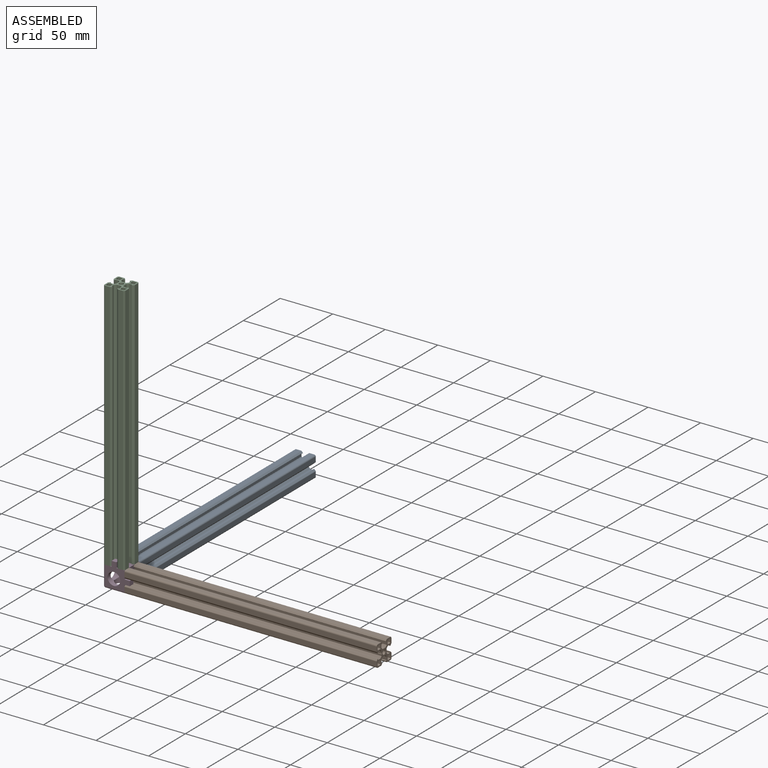
[diagram: assembled view]
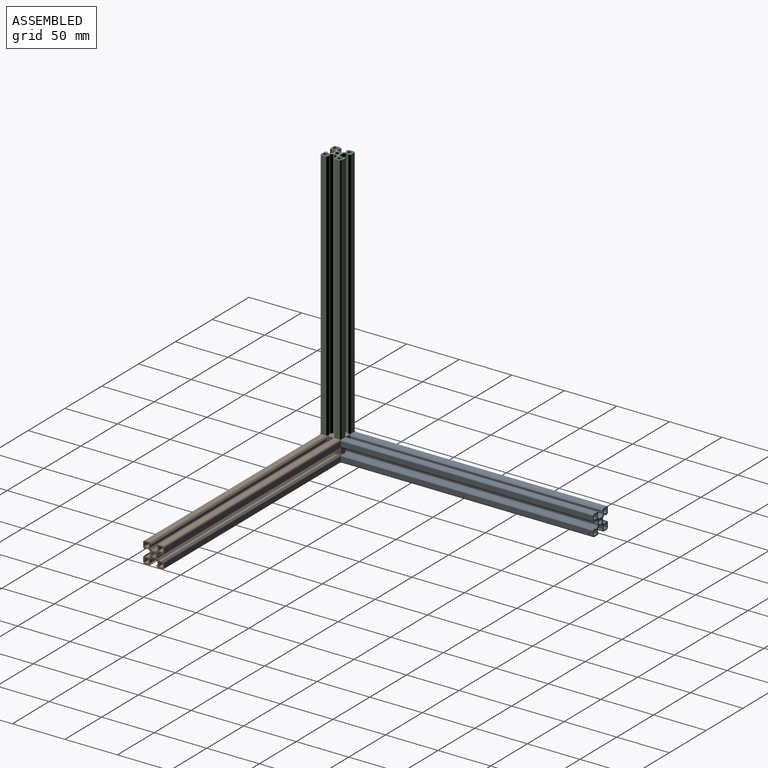
[diagram: assembled view, second angle]
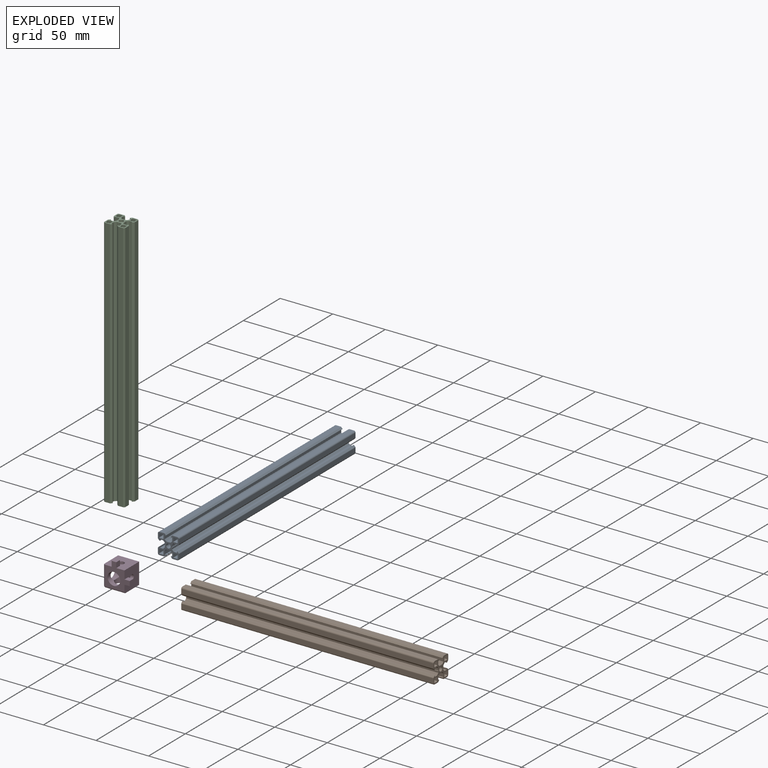
[diagram: exploded view]
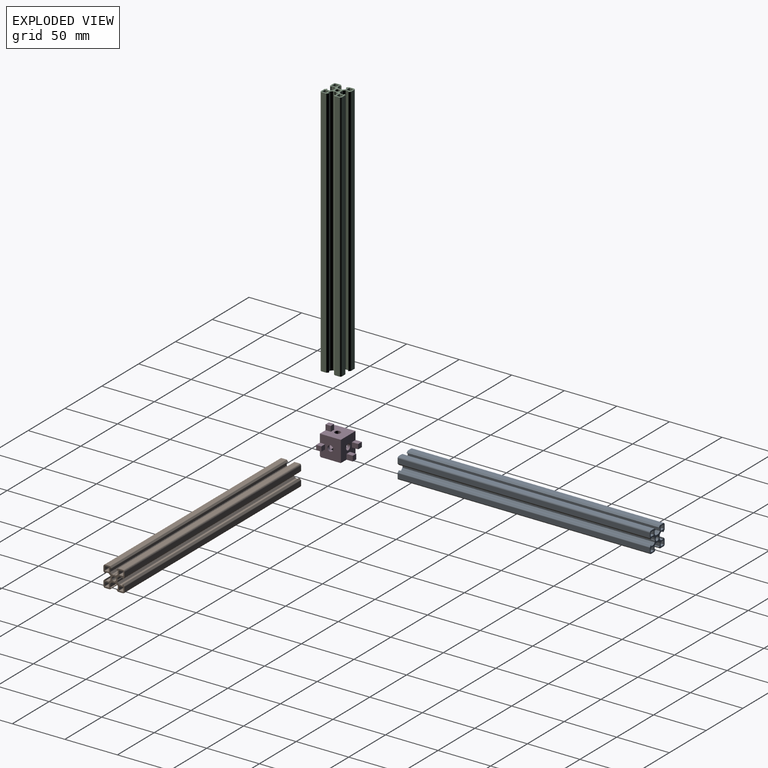
[diagram: exploded view, second angle]
ASSEMBLY  parts=4 mates=3
PART A: 111 faces, bbox 20x20x240 mm
  f0: plane 240x4.33mm, normal (-1,0,0), area 1039.5mm2, adj f1,f103,f109,f110
  f1: cylinder r=1.5mm len=240mm, axis (0,0,1), area 523.6mm2, adj f0,f2,f109,f110
  f2: plane 240x4.56mm, normal (0,-1,0), area 1093.4mm2, adj f1,f3,f109,f110
  f3: cylinder r=0.8mm len=240mm, axis (0,0,1), area 150.8mm2, adj f2,f4,f109,f110
  f4: plane 240x1.1mm, normal (0.71,-0.71,0), area 374.7mm2, adj f3,f5,f109,f110
  f5: cylinder r=0.25mm len=240mm, axis (0,0,1), area 141.4mm2, adj f4,f6,f109,f110
  f6: plane 240x1.05mm, normal (0,1,0), area 252mm2, adj f5,f7,f109,f110
  f7: plane 240x3.2mm, normal (1,0,0), area 768mm2, adj f6,f8,f109,f110
  f8: plane 240x1.6mm, normal (0.71,-0.71,0), area 542.1mm2, adj f7,f9,f109,f110
  f9: plane 240x1.71mm, normal (0,-1,0), area 409.3mm2, adj f8,f10,f109,f110
  f10: plane 240x0.3mm, normal (0.65,-0.76,0), area 95.3mm2, adj f9,f11,f109,f110
  f11: plane 240x0.3mm, normal (-0.65,-0.76,0), area 95.3mm2, adj f10,f12,f109,f110
  f12: plane 240x1.71mm, normal (0,-1,0), area 409.3mm2, adj f11,f13,f109,f110
  f13: plane 240x1.6mm, normal (-0.71,-0.71,0), area 542.1mm2, adj f12,f14,f109,f110
  f14: plane 240x3.2mm, normal (-1,0,0), area 768mm2, adj f13,f15,f109,f110
  f15: plane 240x1.05mm, normal (0,1,0), area 252mm2, adj f14,f16,f109,f110
  f16: cylinder r=0.25mm len=240mm, axis (0,0,1), area 141.4mm2, adj f15,f17,f109,f110
  f17: plane 240x1.1mm, normal (-0.71,-0.71,0), area 374.7mm2, adj f16,f18,f109,f110
  f18: cylinder r=0.8mm len=240mm, axis (0,0,1), area 150.8mm2, adj f17,f19,f109,f110
  f19: plane 240x4.56mm, normal (0,-1,0), area 1093.4mm2, adj f18,f20,f109,f110
  f20: cylinder r=1.5mm len=240mm, axis (0,0,1), area 523.6mm2, adj f19,f21,f109,f110
  f21: plane 240x4.33mm, normal (1,0,0), area 1039.5mm2, adj f20,f22,f109,f110
  f22: cylinder r=0.79mm len=240mm, axis (0,0,1), area 148.9mm2, adj f21,f23,f109,f110
  f23: plane 240x1.28mm, normal (0.71,0.71,0), area 435.3mm2, adj f22,f24,f109,f110
  f24: cylinder r=0.2mm len=240mm, axis (0,0,1), area 110.6mm2, adj f23,f25,f109,f110
  f25: plane 240x1.06mm, normal (-1,0,0), area 254.4mm2, adj f24,f26,f109,f110
  f26: plane 240x3.12mm, normal (0,1,0), area 748mm2, adj f25,f27,f109,f110
  f27: plane 240x1.63mm, normal (0.71,0.71,0), area 553.6mm2, adj f26,f28,f109,f110
  f28: plane 240x1.59mm, normal (1,0,0), area 380.4mm2, adj f27,f29,f109,f110
  f29: plane 240x0.38mm, normal (0.71,0.71,0), area 129.3mm2, adj f28,f30,f109,f110
  f30: plane 240x0.38mm, normal (0.71,-0.71,0), area 129.3mm2, adj f29,f31,f109,f110
  f31: plane 240x1.59mm, normal (1,0,0), area 380.4mm2, adj f30,f32,f109,f110
  f32: plane 240x1.63mm, normal (0.71,-0.71,0), area 553.6mm2, adj f31,f33,f109,f110
  f33: plane 240x3.12mm, normal (0,-1,0), area 748mm2, adj f32,f34,f109,f110
  f34: plane 240x1.06mm, normal (-1,0,0), area 254.4mm2, adj f33,f35,f109,f110
  f35: cylinder r=0.2mm len=240mm, axis (0,0,1), area 110.6mm2, adj f34,f36,f109,f110
  f36: plane 240x1.28mm, normal (0.71,-0.71,0), area 435.3mm2, adj f35,f37,f109,f110
  f37: cylinder r=0.79mm len=240mm, axis (0,0,1), area 148.9mm2, adj f36,f38,f109,f110
  f38: plane 240x4.33mm, normal (1,0,0), area 1039.5mm2, adj f37,f39,f109,f110
  f39: cylinder r=1.5mm len=240mm, axis (0,0,1), area 523.6mm2, adj f38,f40,f109,f110
  f40: plane 240x4.56mm, normal (0,1,0), area 1093.4mm2, adj f39,f41,f109,f110
  f41: cylinder r=0.8mm len=240mm, axis (0,0,1), area 150.8mm2, adj f40,f42,f109,f110
  f42: plane 240x1.1mm, normal (-0.71,0.71,0), area 374.7mm2, adj f41,f43,f109,f110
  f43: cylinder r=0.25mm len=240mm, axis (0,0,1), area 141.4mm2, adj f42,f44,f109,f110
  f44: plane 240x1.05mm, normal (0,-1,0), area 252mm2, adj f43,f45,f109,f110
  f45: plane 240x3.2mm, normal (-1,0,0), area 768mm2, adj f44,f46,f109,f110
  f46: plane 240x1.6mm, normal (-0.71,0.71,0), area 542.1mm2, adj f45,f47,f109,f110
  f47: plane 240x1.71mm, normal (0,1,0), area 409.3mm2, adj f46,f48,f109,f110
  f48: plane 240x0.3mm, normal (-0.65,0.76,0), area 95.3mm2, adj f47,f49,f109,f110
  f49: plane 240x0.3mm, normal (0.65,0.76,0), area 95.3mm2, adj f48,f50,f109,f110
  f50: plane 240x1.71mm, normal (0,1,0), area 409.3mm2, adj f49,f51,f109,f110
  f51: plane 240x1.6mm, normal (0.71,0.71,0), area 542.1mm2, adj f50,f52,f109,f110
  f52: plane 240x3.2mm, normal (1,0,0), area 768mm2, adj f51,f53,f109,f110
  f53: plane 240x1.05mm, normal (0,-1,0), area 252mm2, adj f52,f54,f109,f110
  f54: cylinder r=0.25mm len=240mm, axis (0,0,1), area 141.4mm2, adj f53,f55,f109,f110
  f55: plane 240x1.1mm, normal (0.71,0.71,0), area 374.7mm2, adj f54,f56,f109,f110
  f56: cylinder r=0.8mm len=240mm, axis (0,0,1), area 150.8mm2, adj f55,f57,f109,f110
  f57: plane 240x4.56mm, normal (0,1,0), area 1093.4mm2, adj f56,f58,f109,f110
  f58: cylinder r=1.5mm len=240mm, axis (0,0,1), area 523.6mm2, adj f57,f59,f109,f110
  f59: plane 240x4.33mm, normal (-1,0,0), area 1039.5mm2, adj f58,f60,f109,f110
  f60: cylinder r=0.79mm len=240mm, axis (0,0,1), area 148.9mm2, adj f59,f61,f109,f110
  f61: plane 240x1.28mm, normal (-0.71,-0.71,0), area 435.3mm2, adj f60,f62,f109,f110
  f62: cylinder r=0.2mm len=240mm, axis (0,0,1), area 110.6mm2, adj f61,f63,f109,f110
  f63: plane 240x1.06mm, normal (1,0,0), area 254.4mm2, adj f62,f64,f109,f110
  f64: plane 240x3.12mm, normal (0,-1,0), area 748mm2, adj f63,f65,f109,f110
  f65: plane 240x1.63mm, normal (-0.71,-0.71,0), area 553.6mm2, adj f64,f66,f109,f110
  f66: plane 240x1.59mm, normal (-1,0,0), area 380.4mm2, adj f65,f67,f109,f110
  f67: plane 240x0.38mm, normal (-0.71,-0.71,0), area 129.3mm2, adj f66,f68,f109,f110
  f68: plane 240x0.38mm, normal (-0.71,0.71,0), area 129.3mm2, adj f67,f69,f109,f110
  f69: plane 240x1.59mm, normal (-1,0,0), area 380.4mm2, adj f68,f70,f109,f110
  f70: plane 240x1.63mm, normal (-0.71,0.71,0), area 553.6mm2, adj f69,f71,f109,f110
  f71: plane 240x3.12mm, normal (0,1,0), area 748mm2, adj f70,f72,f109,f110
  f72: plane 240x1.06mm, normal (1,0,0), area 254.4mm2, adj f71,f73,f109,f110
  f73: cylinder r=0.2mm len=240mm, axis (0,0,1), area 110.6mm2, adj f72,f74,f109,f110
  f74: plane 240x1.28mm, normal (-0.71,0.71,0), area 435.3mm2, adj f73,f103,f109,f110
  f75: cylinder r=0.5mm len=240mm, axis (0,0,1), area 148.6mm2, adj f76,f104,f109,f110
  f76: plane 240x3mm, normal (0,-1,0), area 720mm2, adj f75,f77,f109,f110
  f77: cylinder r=0.5mm len=240mm, axis (0,0,1), area 196.6mm2, adj f76,f78,f109,f110
  f78: plane 240x3mm, normal (-1,0,0), area 720mm2, adj f77,f79,f109,f110
  f79: cylinder r=0.5mm len=240mm, axis (0,0,1), area 233.7mm2, adj f78,f80,f109,f110
  f80: plane 240x3mm, normal (0,1,0), area 720mm2, adj f79,f81,f109,f110
  f81: cylinder r=0.5mm len=240mm, axis (0,0,1), area 190.1mm2, adj f80,f104,f109,f110
  f82: cylinder r=0.5mm len=240mm, axis (0,0,1), area 148.6mm2, adj f83,f105,f109,f110
  f83: plane 240x3mm, normal (0,1,0), area 720mm2, adj f82,f84,f109,f110
  f84: cylinder r=0.5mm len=240mm, axis (0,0,1), area 196.6mm2, adj f83,f85,f109,f110
  f85: plane 240x3mm, normal (1,0,0), area 720mm2, adj f84,f86,f109,f110
  f86: cylinder r=0.5mm len=240mm, axis (0,0,1), area 233.7mm2, adj f85,f87,f109,f110
  f87: plane 240x3mm, normal (0,-1,0), area 720mm2, adj f86,f88,f109,f110
  f88: cylinder r=0.5mm len=240mm, axis (0,0,1), area 190.1mm2, adj f87,f105,f109,f110
  f89: plane 240x3mm, normal (1,0,0), area 720mm2, adj f90,f106,f109,f110
  f90: cylinder r=0.5mm len=240mm, axis (0,0,1), area 196.6mm2, adj f89,f91,f109,f110
  f91: plane 240x3mm, normal (0,-1,0), area 720mm2, adj f90,f92,f109,f110
  f92: cylinder r=0.5mm len=240mm, axis (0,0,1), area 148.6mm2, adj f91,f93,f109,f110
  f93: plane 240x3mm, normal (-1,0,0), area 720mm2, adj f92,f94,f109,f110
  f94: cylinder r=0.5mm len=240mm, axis (0,0,1), area 190.1mm2, adj f93,f95,f109,f110
  f95: plane 240x3mm, normal (0,1,0), area 720mm2, adj f94,f106,f109,f110
  f96: plane 240x3mm, normal (-1,0,0), area 720mm2, adj f97,f107,f109,f110
  f97: cylinder r=0.5mm len=240mm, axis (0,0,1), area 196.6mm2, adj f96,f98,f109,f110
  f98: plane 240x3mm, normal (0,1,0), area 720mm2, adj f97,f99,f109,f110
  f99: cylinder r=0.5mm len=240mm, axis (0,0,1), area 148.6mm2, adj f98,f100,f109,f110
  f100: plane 240x3mm, normal (1,0,0), area 720mm2, adj f99,f101,f109,f110
  f101: cylinder r=0.5mm len=240mm, axis (0,0,1), area 190.1mm2, adj f100,f102,f109,f110
  f102: plane 240x3mm, normal (0,-1,0), area 720mm2, adj f101,f107,f109,f110
  f103: cylinder r=0.79mm len=240mm, axis (0,0,1), area 148.9mm2, adj f0,f74,f109,f110
  f104: plane 240x3mm, normal (1,0,0), area 720mm2, adj f75,f81,f109,f110
  f105: plane 240x3mm, normal (-1,0,0), area 720mm2, adj f82,f88,f109,f110
  f106: cylinder r=0.5mm len=240mm, axis (0,0,1), area 233.7mm2, adj f89,f95,f109,f110
  f107: cylinder r=0.5mm len=240mm, axis (0,0,1), area 233.7mm2, adj f96,f102,f109,f110
  f108: cylinder r=2.1mm len=240mm, axis (0,0,1), area 3166.7mm2, adj f109,f110
  f109: plane 20x20mm, normal (0,0,-1), area 150.7mm2, adj f0,f1,f2,f3,f4,f5,f6,f7
  f110: plane 20x20mm, normal (0,0,1), area 150.7mm2, adj f0,f1,f2,f3,f4,f5,f6,f7
PART B: same geometry as A
PART C: same geometry as A
PART D: 42 faces, bbox 25x25x26 mm
  f0: plane 20x20mm, normal (0,0,1), area 329.8mm2, adj f1,f3,f4,f5,f17,f33,f34,f35
  f1: plane 20x20mm, normal (1,0,0), area 353.3mm2, adj f0,f4,f5,f6,f13,f15,f18,f19
  f2: cylinder r=6mm len=12mm, axis (0,1,0), area 173.3mm2, adj f5,f10,f12,f31,f32
  f3: plane 24.5x18.5mm, normal (-1,0,0), area 256.8mm2, adj f0,f4,f10,f14,f17,f38,f40,f41
  f4: plane 20x20mm, normal (0,-1,0), area 352.6mm2, adj f0,f1,f3,f6,f9,f14,f25,f26
  f5: plane 24.5x18.5mm, normal (0,1,0), area 256.8mm2, adj f0,f1,f2,f15,f17,f34,f35,f37
  f6: plane 18.5x18.5mm, normal (0,0,-1), area 229.2mm2, adj f1,f4,f14,f15,f23,f24,f32
  f7: cylinder r=6mm len=12mm, axis (0,1,0), area 60.2mm2, adj f8,f10,f12,f31,f32
  f8: plane 12x12mm, normal (0,1,0), area 88.6mm2, adj f7,f9
  f9: cylinder r=2.79mm len=5.59mm, axis (0,1,0), area 52.6mm2, adj f4,f8
  f10: cylinder r=6mm len=12mm, axis (-1,0,0), area 173.3mm2, adj f2,f3,f7,f31,f32
  f11: plane 12x12mm, normal (-1,0,0), area 89.3mm2, adj f12,f13
  f12: cylinder r=6mm len=12mm, axis (-1,0,0), area 60.2mm2, adj f2,f7,f11,f31,f32
  f13: cylinder r=2.75mm len=5.5mm, axis (-1,0,0), area 51.8mm2, adj f1,f11
  f14: cylinder r=1.5mm len=18.5mm, axis (0,-1,0), area 43.6mm2, adj f3,f4,f6,f16
  f15: cylinder r=1.5mm len=18.5mm, axis (-1,0,0), area 43.6mm2, adj f1,f5,f6,f16
  f16: sphere r=1.5mm, area 3.5mm2, adj f14,f15,f17
  f17: cylinder r=1.5mm len=18.5mm, axis (0,0,1), area 43.6mm2, adj f0,f3,f5,f16
  f18: plane 5x5mm, normal (0,1,0), area 25mm2, adj f1,f19,f21,f22,f23
  f19: plane 5x4.5mm, normal (0,0,1), area 22.5mm2, adj f1,f18,f20,f22
  f20: plane 5x5mm, normal (0,-1,0), area 25mm2, adj f1,f19,f21,f22,f23
  f21: plane 5x4.5mm, normal (0,0,-1), area 22.5mm2, adj f18,f20,f22,f23
  f22: plane 5x4.5mm, normal (1,0,0), area 22.5mm2, adj f18,f19,f20,f21
  f23: plane 4.5x0.02mm, normal (-1,0,0), area 0.1mm2, adj f6,f18,f20,f21
  f24: plane 4.5x0.01mm, normal (0,1,0), area 0.1mm2, adj f6,f25,f27,f28
  f25: plane 5x5mm, normal (1,0,0), area 25mm2, adj f4,f24,f26,f28,f29
  f26: plane 5x4.5mm, normal (0,0,1), area 22.5mm2, adj f4,f25,f27,f29
  f27: plane 5x5mm, normal (-1,0,0), area 25mm2, adj f4,f24,f26,f28,f29
  f28: plane 5x4.5mm, normal (0,0,-1), area 22.5mm2, adj f24,f25,f27,f29
  f29: plane 5x4.5mm, normal (0,-1,0), area 22.5mm2, adj f25,f26,f27,f28
  f30: plane 12x12mm, normal (0,0,-1), area 89.3mm2, adj f31,f33
  f31: cylinder r=6mm len=12mm, axis (0,0,-1), area 60.2mm2, adj f2,f7,f10,f12,f30
  f32: cylinder r=6mm len=12mm, axis (0,0,-1), area 173.3mm2, adj f2,f6,f7,f10,f12
  f33: cylinder r=2.75mm len=5.5mm, axis (0,0,-1), area 51.8mm2, adj f0,f30
  f34: plane 6x5mm, normal (1,0,0), area 30mm2, adj f0,f5,f36,f37
  f35: plane 6x5mm, normal (-1,0,0), area 30mm2, adj f0,f5,f36,f37
  f36: plane 6x4.6mm, normal (0,-1,0), area 27.6mm2, adj f0,f34,f35,f37
  f37: plane 5x4.6mm, normal (0,0,1), area 23mm2, adj f5,f34,f35,f36
  f38: plane 6x5mm, normal (0,-1,0), area 30mm2, adj f0,f3,f39,f41
  f39: plane 6x4.6mm, normal (1,0,0), area 27.6mm2, adj f0,f38,f40,f41
  f40: plane 6x5mm, normal (0,1,0), area 30mm2, adj f0,f3,f39,f41
  f41: plane 5x4.6mm, normal (0,0,1), area 23mm2, adj f3,f38,f39,f40
PLACE A rot(axis=(-1,0,0),90deg) t=(-38.66,132.41,-272.89)mm
PLACE B rot(axis=(0.58,-0.58,-0.58),120deg) t=(-28.66,-117.59,-272.89)mm
PLACE C t=(-38.66,-117.58,-22.89)mm
PLACE D rot(axis=(-1,0,0),90deg) t=(-38.66,-127.59,-272.89)mm
MATE fastened A.f108 <-> D.f31  axis (0,1,0) through (-38.66,-107.59,-272.89)mm
MATE fastened B.f108 <-> D.f10  axis (-1,0,0) through (-28.66,-117.59,-272.89)mm
MATE fastened D.f9 <-> C.f108  axis (0,0,-1) through (-38.66,-117.58,-262.89)mm
